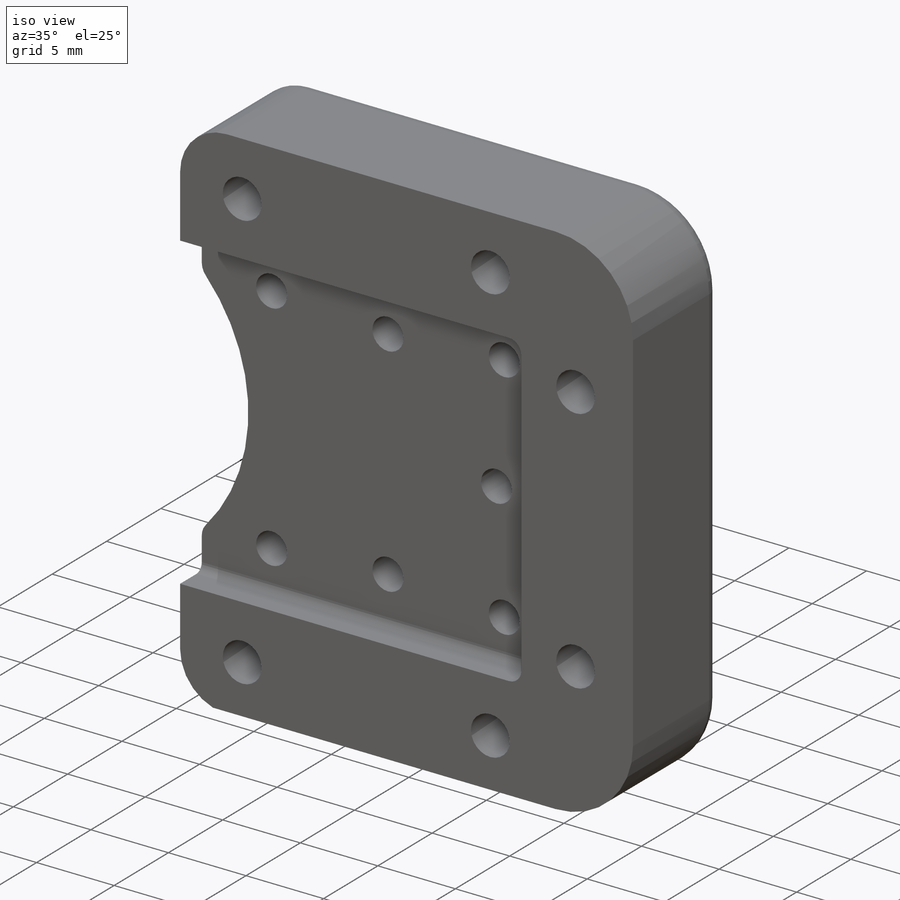
[diagram: iso view]
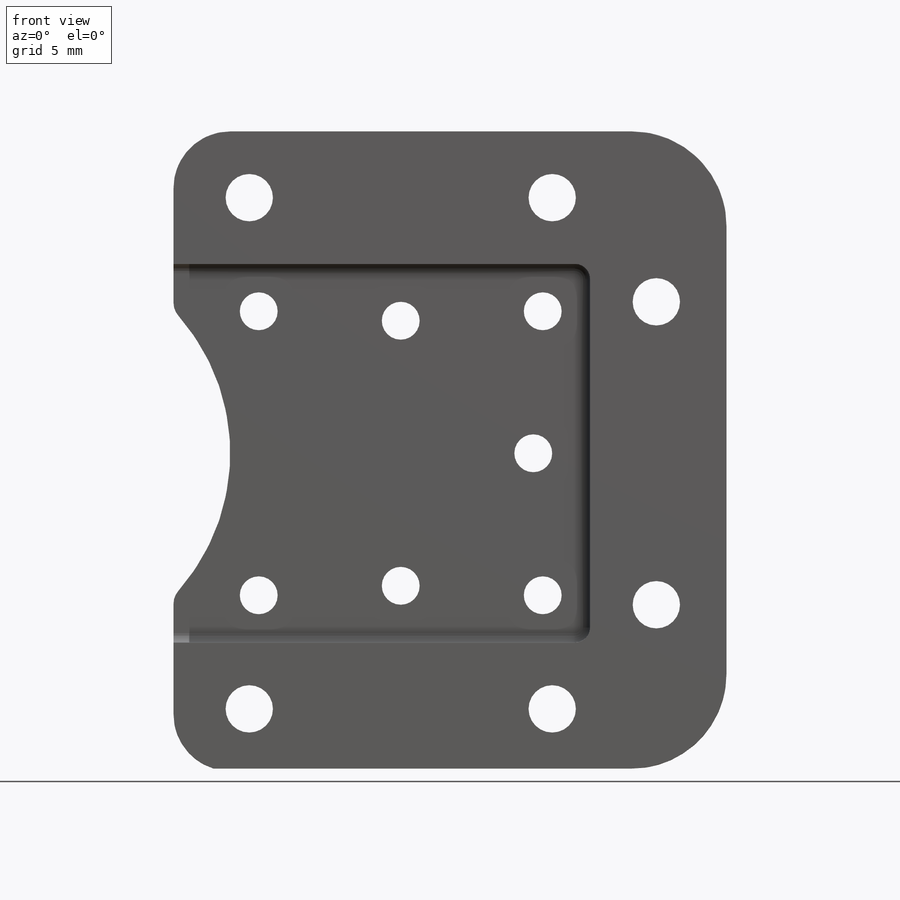
[diagram: front view]
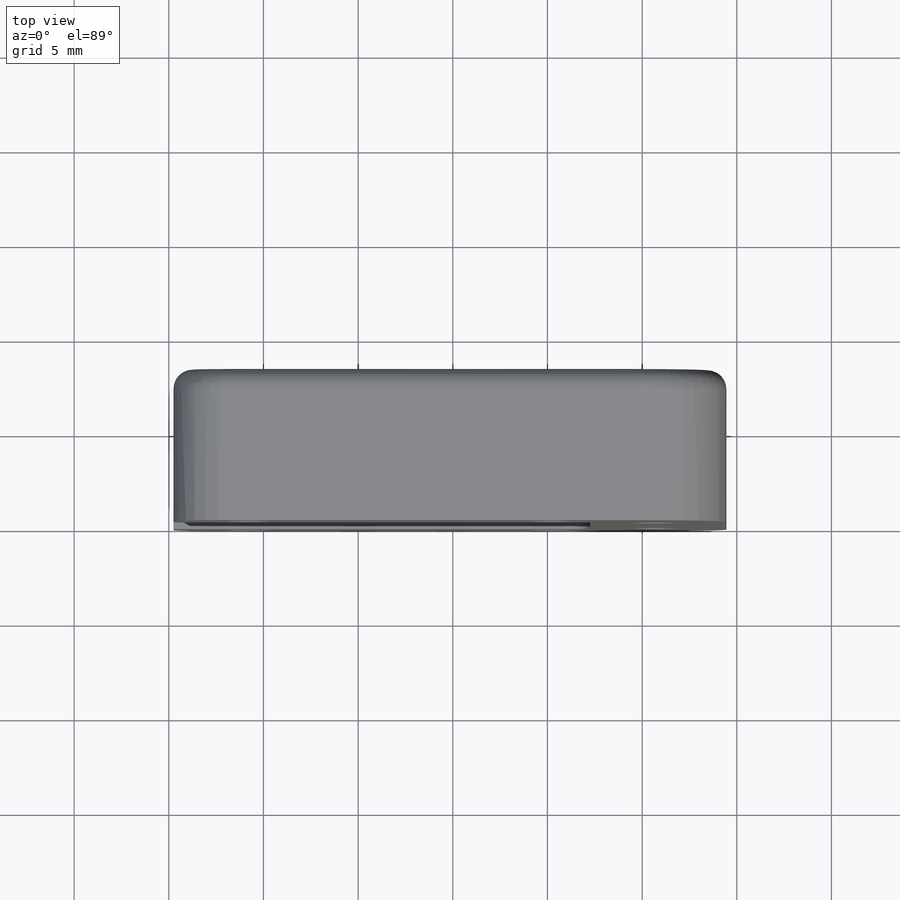
[diagram: top view]
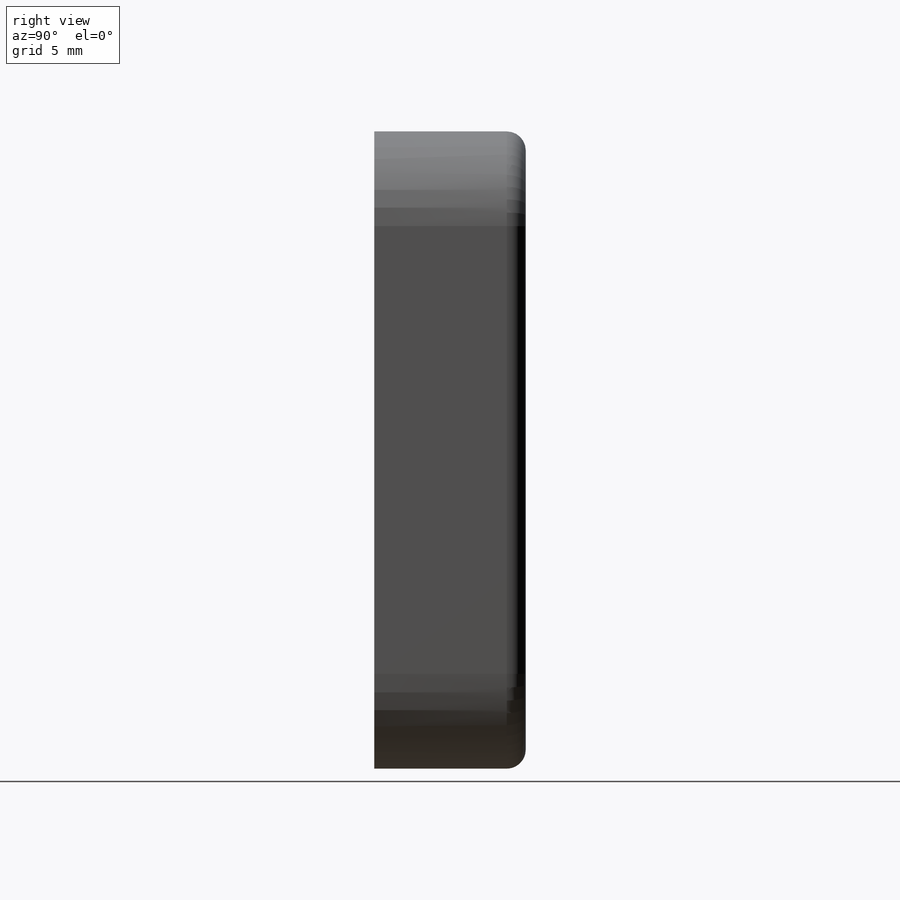
[diagram: right view]
SOLIDWORKS PART (.sldprt)
format: sldprt  version: not decoded by parser v0  size: 1,366,528 bytes
history: native  units: mm
features: sketch x12, fillet x10, cut_extrude x7, plane x3, hole x2, chamfer x2, material x1, extrude x1 (+10 scaffold rows collapsed)
feature tree (48):
  scaffold x10  (default folders/planes/origin — collapsed)
  material  "Материал <не указан>"
  plane  "Plan de face"
  plane  "Plan de dessus"
  plane  "Plan de droite"
  sketch  "Esquisse1"  dims[c1.D1=8.0mm c1.D2=75.5mm c1.D3=36.0mm c1.D4=9.0mm c1.D5=12.0mm c1.D6=20.5mm c1.D7=11.5mm c1.D8=50.0mm c1.D9=7.0mm c1.D10=7.0mm c1.D11=9.5mm c1.D12=~5.484581mm c2.D12=~1.720569deg c3.D12=20.0mm c3.D13=24.5mm c3.D14=8.0mm c3.D15=27.0mm c3.D16=3.5mm c3.D17=2.0mm c3.D18=3.5mm c3.D19=2.0mm c3.D20=4.0mm c3.D21=8.0mm c3.D22=8.0mm c3.D23=8.0mm c3.D24=8.0mm c3.D25=8.0mm c4.D24=8.0mm c4.D25=8.0mm c4.D26=16.0mm c4.D20=5.5mm c4.D27=6.0mm c4.D28=7.0mm c4.D29=20.0mm c4.D30=11.0mm c4.D31=~19.575779mm c5.D31=~179.737966deg c6.D31=20.0mm c6.D32=40.5mm c6.D33=45.0mm c6.D34=20.0mm c6.D35=21.0mm c6.D36=25.0mm]
  extrude  "Boss.-Extru.1"  Depth=3mm
  hole  "Dégagement M21"  Diameter=2.4mm Depth=3mm
  sketch  "Esquisse3"
  sketch  "Esquisse2"  dims[hole-wizard template sketch: 59 standard entries collapsed; hole parameters kept: c18.Diamètre du perçage jusqu'au prochain=2.4mm c18.Profondeur du perçage jusqu'au prochain=3.0mm]
  chamfer  "Chanfrein1"  Distance=1.5mm Angle=45deg
  chamfer  "Chanfrein2"  Distance=6mm
  fillet  "Congé1"  Radius=2mm
  fillet  "Congé2"  Radius=10mm
  fillet  "Congé3"  Radius=0.8mm
  hole  "Dégagement M31"  Diameter=3.4mm Depth=3mm
  sketch  "Esquisse5"  dims[D1=4.75mm D2=44.0mm D3=16.0mm D4=59.0mm D5=~7.624251mm]
  sketch  "Esquisse4"  dims[hole-wizard template sketch: 61 standard entries collapsed; hole parameters above]
  sketch  "Esquisse6"  dims[D1=10.0mm D2=15.0mm D3=~3.451941mm D4=7.0mm]
  cut_extrude  "Enlèv. mat.-Extru.1"  [1 undecoded]
  fillet  "Скругление1"  Radius=3mm
  fillet  "Скругление2"  Radius=1mm
  sketch  "Эскиз5"
  cut_extrude  "Вырез-Вытянуть2"  [1 undecoded]
  sketch  "Эскиз6"
  cut_extrude  "Бобышка-Вытянуть3"  [1 undecoded]
  sketch  "Эскиз2"  dims[c1.D1=5.0mm c1.D2=5.0mm c1.D3=3.0mm c2.D1=3.0mm]
  cut_extrude  "Бобышка-Вытянуть1"  Depth=2mm
  sketch  "Эскиз3"  dims[D2=22.0mm D3=8.0mm D4=17.0mm D1=0.0mm]
  cut_extrude  "Бобышка-Вытянуть2"  Depth=6mm
  sketch  "Эскиз4"  dims[D1=0.0mm]
  cut_extrude  "Вырез-Вытянуть1"  [1 undecoded]
  sketch  "Эскиз10"  dims[c1.D3=2.5mm c1.D1=16.0mm c1.D2=27.0mm c1.D4=5.5mm c1.D5=5.5mm c1.D6=16.0mm c2.D5=16.0mm c2.D6=18.4mm c2.D7=3.5mm c2.D8=3.5mm c3.D6=0.0mm]
  cut_extrude  "Вырез-Вытянуть3"  [1 undecoded]
  fillet  "Скругление3"  Radius=0.5mm
  fillet  "Скругление4"  Radius=1mm
  fillet  "Скругление5"  Radius=0.3mm
  fillet  "Скругление6"  Radius=0.3mm
  fillet  "Скругление7"  Radius=1mm
decode coverage: 26 of 34 modeling features carry decoded parameters
note: ~ marks probable driven/reference dimensions
note: 5 parameter values undecoded
summary: no parameter record found for 5 features
note: suppression state not decoded; provenance and decode notes live in map.json
